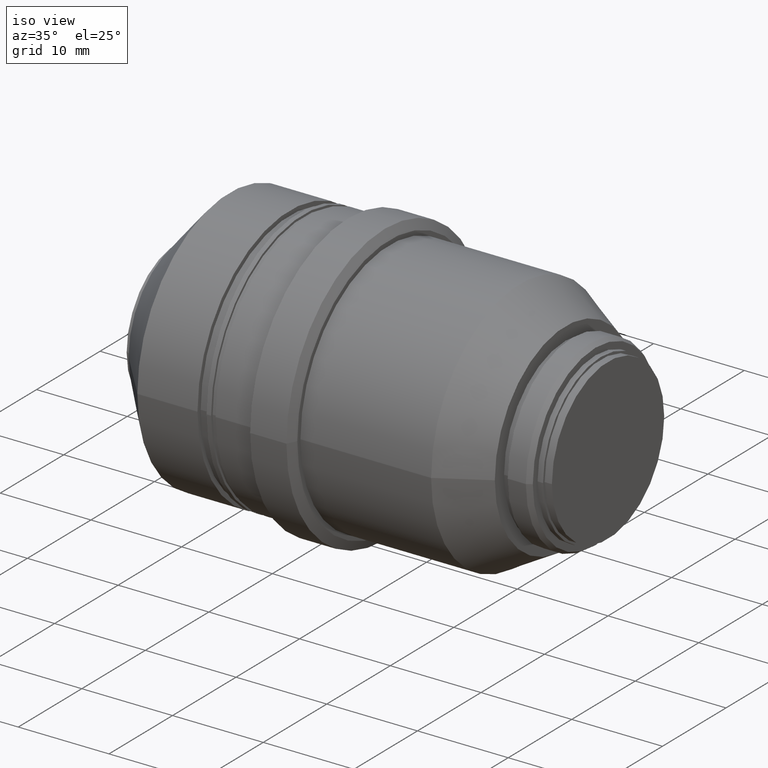
[diagram: clean part render]
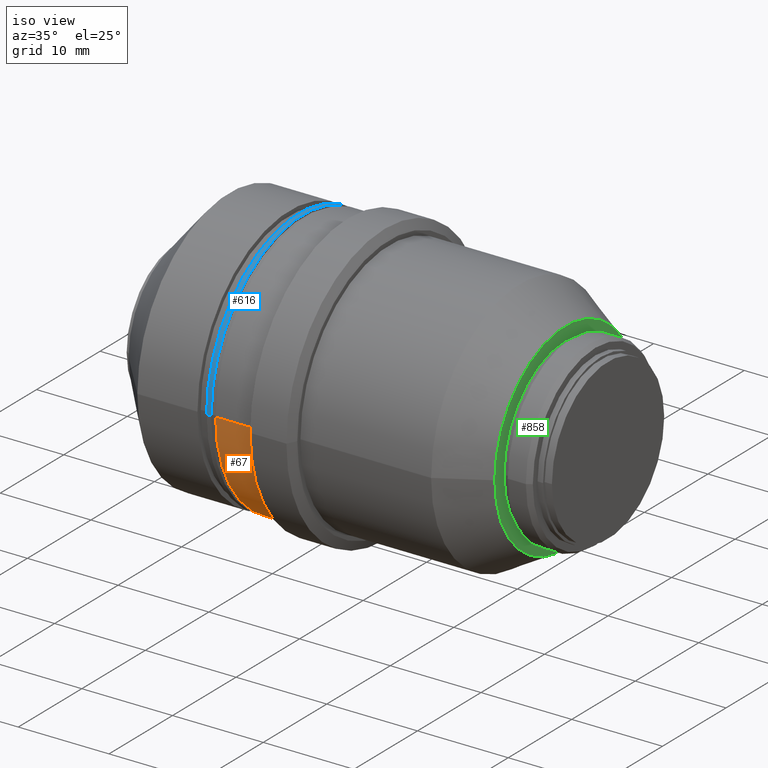
[diagram: same view with three faces highlighted in distinct colors, each labeled with its STEP entity id]
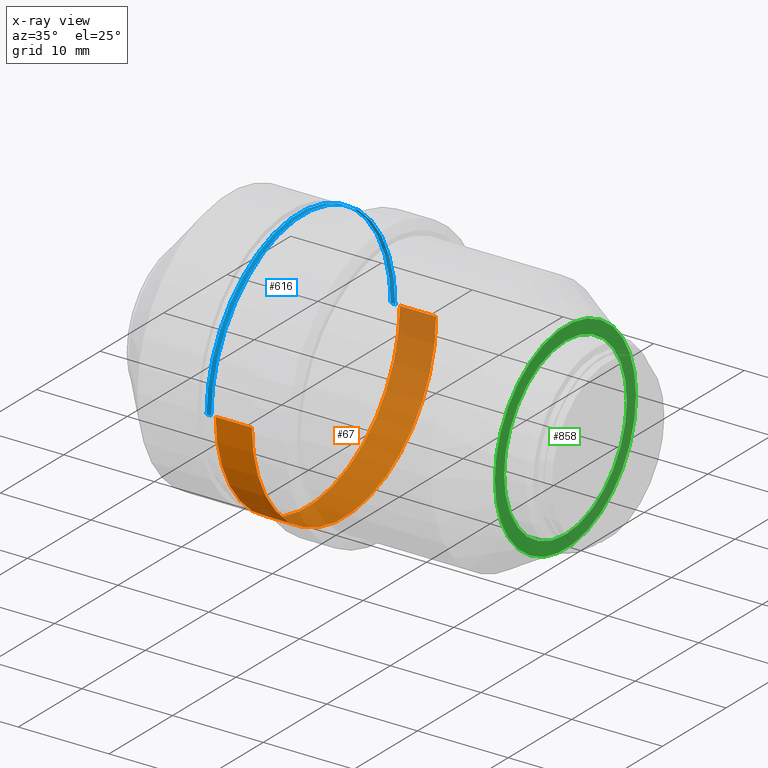
[diagram: x-ray of the same camera — body ghosted, the three highlighted faces saturated]
A machine part, iso view with three faces highlighted in distinct colors.
The next image is the same camera in x-ray (body ghosted, the three faces saturated) — at least one of them is partly hidden behind the body in this view.
Their STEP definitions:

[orange] entity #67 — the highlighted cylindrical surface (partial cylindrical patch) has radius 14.5 mm, axis along (1, 0, 0).
#13 = CARTESIAN_POINT ( 'NONE',  ( -29.10000000000000142, 14.50000000000000000, 0.000000000000000000 ) ) ;
#32 = AXIS2_PLACEMENT_3D ( 'NONE', #547, #1250, #852 ) ;
#67 = ADVANCED_FACE ( 'NONE', ( #937 ), #838, .T. ) ;
#68 = CARTESIAN_POINT ( 'NONE',  ( -29.10000000000000142, 2.013062325833374741E-15, 0.000000000000000000 ) ) ;
#79 = ORIENTED_EDGE ( 'NONE', *, *, #1144, .T. ) ;
#80 = AXIS2_PLACEMENT_3D ( 'NONE', #68, #1300, #394 ) ;
#98 = LINE ( 'NONE', #1147, #261 ) ;
#103 = LINE ( 'NONE', #515, #167 ) ;
#163 = VERTEX_POINT ( 'NONE', #265 ) ;
#167 = VECTOR ( 'NONE', #919, 1000.000000000000000 ) ;
#216 = AXIS2_PLACEMENT_3D ( 'NONE', #717, #636, #317 ) ;
#238 = CIRCLE ( 'NONE', #216, 14.50000000000000000 ) ;
#261 = VECTOR ( 'NONE', #832, 1000.000000000000000 ) ;
#265 = CARTESIAN_POINT ( 'NONE',  ( -33.09999999999999432, 14.50000000000000000, 0.000000000000000000 ) ) ;
#275 = CIRCLE ( 'NONE', #80, 14.50000000000000000 ) ;
#314 = CARTESIAN_POINT ( 'NONE',  ( -33.09999999999999432, -14.50000000000000000, 1.775737858763660240E-15 ) ) ;
#317 = DIRECTION ( 'NONE',  ( 0.000000000000000000, 1.000000000000000000, 0.000000000000000000 ) ) ;
#327 = EDGE_CURVE ( 'NONE', #925, #1205, #275, .T. ) ;
#394 = DIRECTION ( 'NONE',  ( -2.392722035830078972E-16, 1.000000000000000000, 0.000000000000000000 ) ) ;
#402 = ORIENTED_EDGE ( 'NONE', *, *, #327, .F. ) ;
#515 = CARTESIAN_POINT ( 'NONE',  ( 40.04765493192059722, -14.50000000000000000, 1.775737858763660240E-15 ) ) ;
#547 = CARTESIAN_POINT ( 'NONE',  ( 40.04765493192059722, 1.472798071966286118E-14, 0.000000000000000000 ) ) ;
#564 = EDGE_CURVE ( 'NONE', #787, #925, #103, .T. ) ;
#611 = ORIENTED_EDGE ( 'NONE', *, *, #1134, .T. ) ;
#636 = DIRECTION ( 'NONE',  ( 1.000000000000000000, 0.000000000000000000, 0.000000000000000000 ) ) ;
#717 = CARTESIAN_POINT ( 'NONE',  ( -33.09999999999999432, 1.277539572019209913E-15, 0.000000000000000000 ) ) ;
#787 = VERTEX_POINT ( 'NONE', #314 ) ;
#832 = DIRECTION ( 'NONE',  ( 1.000000000000000000, 1.838806884535414781E-16, 0.000000000000000000 ) ) ;
#838 = CYLINDRICAL_SURFACE ( 'NONE', #32, 14.50000000000000000 ) ;
#852 = DIRECTION ( 'NONE',  ( 0.000000000000000000, 1.000000000000000000, 0.000000000000000000 ) ) ;
#919 = DIRECTION ( 'NONE',  ( 1.000000000000000000, 1.838806884535414781E-16, 0.000000000000000000 ) ) ;
#925 = VERTEX_POINT ( 'NONE', #974 ) ;
#937 = FACE_OUTER_BOUND ( 'NONE', #1225, .T. ) ;
#974 = CARTESIAN_POINT ( 'NONE',  ( -29.10000000000000142, -14.50000000000000000, 1.836970198721029983E-15 ) ) ;
#1134 = EDGE_CURVE ( 'NONE', #787, #163, #238, .T. ) ;
#1144 = EDGE_CURVE ( 'NONE', #163, #1205, #98, .T. ) ;
#1147 = CARTESIAN_POINT ( 'NONE',  ( 40.04765493192059722, 14.50000000000000000, 0.000000000000000000 ) ) ;
#1170 = ORIENTED_EDGE ( 'NONE', *, *, #564, .F. ) ;
#1205 = VERTEX_POINT ( 'NONE', #13 ) ;
#1225 = EDGE_LOOP ( 'NONE', ( #1170, #611, #79, #402 ) ) ;
#1250 = DIRECTION ( 'NONE',  ( 1.000000000000000000, 0.000000000000000000, 0.000000000000000000 ) ) ;
#1300 = DIRECTION ( 'NONE',  ( 1.000000000000000000, 2.392722035830079958E-16, 0.000000000000000000 ) ) ;

[blue] entity #616 — the highlighted cylindrical surface (partial cylindrical patch) has radius 14.5 mm, axis along (1, 0, 0).
#2 = LINE ( 'NONE', #823, #1243 ) ;
#29 = DIRECTION ( 'NONE',  ( 1.000000000000000000, 1.838806884535414781E-16, 0.000000000000000000 ) ) ;
#44 = AXIS2_PLACEMENT_3D ( 'NONE', #1113, #798, #100 ) ;
#61 = EDGE_CURVE ( 'NONE', #451, #557, #118, .T. ) ;
#62 = DIRECTION ( 'NONE',  ( 1.000000000000000000, 0.000000000000000000, 0.000000000000000000 ) ) ;
#87 = FACE_OUTER_BOUND ( 'NONE', #325, .T. ) ;
#100 = DIRECTION ( 'NONE',  ( 0.000000000000000000, 1.000000000000000000, 0.000000000000000000 ) ) ;
#118 = CIRCLE ( 'NONE', #863, 14.50000000000000000 ) ;
#127 = CARTESIAN_POINT ( 'NONE',  ( -34.10000000000000142, 1.093658883565666192E-15, 0.000000000000000000 ) ) ;
#185 = DIRECTION ( 'NONE',  ( 1.000000000000000000, 1.838806884535414781E-16, 0.000000000000000000 ) ) ;
#250 = EDGE_CURVE ( 'NONE', #1308, #1241, #321, .T. ) ;
#306 = CYLINDRICAL_SURFACE ( 'NONE', #44, 14.50000000000000000 ) ;
#321 = CIRCLE ( 'NONE', #513, 14.50000000000000000 ) ;
#325 = EDGE_LOOP ( 'NONE', ( #489, #802, #949, #510 ) ) ;
#451 = VERTEX_POINT ( 'NONE', #728 ) ;
#489 = ORIENTED_EDGE ( 'NONE', *, *, #61, .T. ) ;
#510 = ORIENTED_EDGE ( 'NONE', *, *, #1190, .F. ) ;
#513 = AXIS2_PLACEMENT_3D ( 'NONE', #980, #62, #879 ) ;
#557 = VERTEX_POINT ( 'NONE', #610 ) ;
#569 = EDGE_CURVE ( 'NONE', #557, #1241, #2, .T. ) ;
#610 = CARTESIAN_POINT ( 'NONE',  ( -34.10000000000000142, -14.50000000000000000, 1.775737858763660240E-15 ) ) ;
#616 = ADVANCED_FACE ( 'NONE', ( #87 ), #306, .T. ) ;
#621 = CARTESIAN_POINT ( 'NONE',  ( 40.04765493192059722, 14.50000000000000000, 0.000000000000000000 ) ) ;
#728 = CARTESIAN_POINT ( 'NONE',  ( -34.10000000000000142, 14.50000000000000000, 0.000000000000000000 ) ) ;
#798 = DIRECTION ( 'NONE',  ( 1.000000000000000000, 0.000000000000000000, 0.000000000000000000 ) ) ;
#802 = ORIENTED_EDGE ( 'NONE', *, *, #569, .T. ) ;
#823 = CARTESIAN_POINT ( 'NONE',  ( 40.04765493192059722, -14.50000000000000000, 1.775737858763660240E-15 ) ) ;
#863 = AXIS2_PLACEMENT_3D ( 'NONE', #127, #1041, #1034 ) ;
#879 = DIRECTION ( 'NONE',  ( 0.000000000000000000, 1.000000000000000000, 0.000000000000000000 ) ) ;
#916 = CARTESIAN_POINT ( 'NONE',  ( -33.60000000000000142, -14.50000000000000000, 1.775737858763660240E-15 ) ) ;
#949 = ORIENTED_EDGE ( 'NONE', *, *, #250, .F. ) ;
#980 = CARTESIAN_POINT ( 'NONE',  ( -33.60000000000000142, 1.185599227792437954E-15, 0.000000000000000000 ) ) ;
#1034 = DIRECTION ( 'NONE',  ( 0.000000000000000000, 1.000000000000000000, 0.000000000000000000 ) ) ;
#1041 = DIRECTION ( 'NONE',  ( 1.000000000000000000, 0.000000000000000000, 0.000000000000000000 ) ) ;
#1083 = CARTESIAN_POINT ( 'NONE',  ( -33.60000000000000142, 14.50000000000000000, 0.000000000000000000 ) ) ;
#1113 = CARTESIAN_POINT ( 'NONE',  ( 40.04765493192059722, 1.472798071966286118E-14, 0.000000000000000000 ) ) ;
#1160 = VECTOR ( 'NONE', #29, 1000.000000000000000 ) ;
#1190 = EDGE_CURVE ( 'NONE', #451, #1308, #1240, .T. ) ;
#1240 = LINE ( 'NONE', #621, #1160 ) ;
#1241 = VERTEX_POINT ( 'NONE', #916 ) ;
#1243 = VECTOR ( 'NONE', #185, 1000.000000000000000 ) ;
#1308 = VERTEX_POINT ( 'NONE', #1083 ) ;

[green] entity #858 — the highlighted planar face has unit normal (1, 0, 0).
#17 = CARTESIAN_POINT ( 'NONE',  ( -4.700000000000000178, -9.660000000000000142, 1.183008807976341910E-15 ) ) ;
#85 = EDGE_CURVE ( 'NONE', #440, #336, #1164, .T. ) ;
#249 = DIRECTION ( 'NONE',  ( 1.000000000000000000, 1.560950834429789693E-16, 0.000000000000000000 ) ) ;
#259 = AXIS2_PLACEMENT_3D ( 'NONE', #558, #460, #764 ) ;
#303 = ORIENTED_EDGE ( 'NONE', *, *, #1245, .F. ) ;
#336 = VERTEX_POINT ( 'NONE', #1015 ) ;
#366 = ORIENTED_EDGE ( 'NONE', *, *, #85, .F. ) ;
#429 = EDGE_LOOP ( 'NONE', ( #759, #1229 ) ) ;
#440 = VERTEX_POINT ( 'NONE', #17 ) ;
#460 = DIRECTION ( 'NONE',  ( 1.000000000000000000, 1.838806884535414781E-16, 0.000000000000000000 ) ) ;
#476 = AXIS2_PLACEMENT_3D ( 'NONE', #930, #1146, #540 ) ;
#512 = CARTESIAN_POINT ( 'NONE',  ( -4.700000000000000178, -11.11324865405191886, 0.000000000000000000 ) ) ;
#528 = DIRECTION ( 'NONE',  ( 1.000000000000000000, 1.795779995835204822E-16, 0.000000000000000000 ) ) ;
#540 = DIRECTION ( 'NONE',  ( -1.795779995835204083E-16, 1.000000000000000000, 0.000000000000000000 ) ) ;
#545 = AXIS2_PLACEMENT_3D ( 'NONE', #754, #249, #657 ) ;
#558 = CARTESIAN_POINT ( 'NONE',  ( -4.700000000000000178, 11.11324865405191886, 0.000000000000000000 ) ) ;
#614 = CARTESIAN_POINT ( 'NONE',  ( -4.700000000000000178, 6.499751124099789556E-15, 0.000000000000000000 ) ) ;
#630 = VERTEX_POINT ( 'NONE', #512 ) ;
#633 = VERTEX_POINT ( 'NONE', #712 ) ;
#657 = DIRECTION ( 'NONE',  ( -1.560950834429788954E-16, 1.000000000000000000, 0.000000000000000000 ) ) ;
#662 = DIRECTION ( 'NONE',  ( 1.000000000000000000, 1.560950834429789693E-16, 0.000000000000000000 ) ) ;
#663 = AXIS2_PLACEMENT_3D ( 'NONE', #614, #662, #760 ) ;
#712 = CARTESIAN_POINT ( 'NONE',  ( -4.700000000000000178, 11.11324865405191886, 1.537742979018814877E-15 ) ) ;
#739 = CARTESIAN_POINT ( 'NONE',  ( -4.700000000000000178, 6.499751124099789556E-15, 0.000000000000000000 ) ) ;
#754 = CARTESIAN_POINT ( 'NONE',  ( -4.700000000000000178, 6.499751124099789556E-15, 0.000000000000000000 ) ) ;
#759 = ORIENTED_EDGE ( 'NONE', *, *, #845, .T. ) ;
#760 = DIRECTION ( 'NONE',  ( -1.560950834429788954E-16, 1.000000000000000000, 0.000000000000000000 ) ) ;
#764 = DIRECTION ( 'NONE',  ( -1.838806884535414781E-16, 1.000000000000000000, 0.000000000000000000 ) ) ;
#845 = EDGE_CURVE ( 'NONE', #630, #633, #1248, .T. ) ;
#858 = ADVANCED_FACE ( 'NONE', ( #1063, #962 ), #1167, .T. ) ;
#930 = CARTESIAN_POINT ( 'NONE',  ( -4.700000000000000178, 6.499751124099789556E-15, 0.000000000000000000 ) ) ;
#953 = EDGE_CURVE ( 'NONE', #633, #630, #1055, .T. ) ;
#962 = FACE_BOUND ( 'NONE', #968, .T. ) ;
#968 = EDGE_LOOP ( 'NONE', ( #303, #366 ) ) ;
#1015 = CARTESIAN_POINT ( 'NONE',  ( -4.700000000000000178, 9.660000000000000142, 0.000000000000000000 ) ) ;
#1055 = CIRCLE ( 'NONE', #545, 11.11324865405191886 ) ;
#1063 = FACE_OUTER_BOUND ( 'NONE', #429, .T. ) ;
#1091 = AXIS2_PLACEMENT_3D ( 'NONE', #739, #528, #1124 ) ;
#1124 = DIRECTION ( 'NONE',  ( -1.795779995835204083E-16, 1.000000000000000000, 0.000000000000000000 ) ) ;
#1146 = DIRECTION ( 'NONE',  ( 1.000000000000000000, 1.795779995835204822E-16, 0.000000000000000000 ) ) ;
#1164 = CIRCLE ( 'NONE', #476, 9.660000000000000142 ) ;
#1167 = PLANE ( 'NONE',  #259 ) ;
#1229 = ORIENTED_EDGE ( 'NONE', *, *, #953, .T. ) ;
#1245 = EDGE_CURVE ( 'NONE', #336, #440, #1249, .T. ) ;
#1248 = CIRCLE ( 'NONE', #663, 11.11324865405191886 ) ;
#1249 = CIRCLE ( 'NONE', #1091, 9.660000000000000142 ) ;